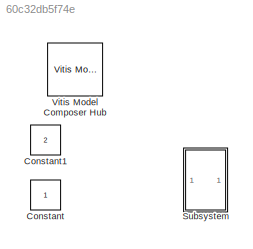
MODEL slx_60c32db5f74e
KIND model
CONFIG AbsTol = auto
CONFIG EnableMultiTasking = off
CONFIG FixedStep = auto
CONFIG MaxStep = auto
CONFIG MinStep = auto
CONFIG RelTol = 1e-3
CONFIG SampleTimeConstraint = Unconstrained
CONFIG SolverName = VariableStepAuto
CONFIG StartTime = 0.0
CONFIG StopTime = 10.0
BLOCK [Constant] Constant
  SampleTime = 1/fclk
BLOCK [Constant] Constant1
  SampleTime = 1/fclk
  Value = 2
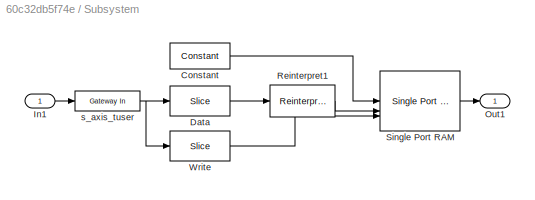
BLOCK [SubSystem] Subsystem
BLOCK [Reference] Subsystem/Constant  REF=hdlBasic/Constant
  SourceBlock = hdlBasic/Constant
  SourceType = Constant Block Block
BLOCK [Reference] Subsystem/Data  REF=hdlBasic/Slice
  SourceBlock = hdlBasic/Slice
  SourceType = Bit Slice Extractor Block
BLOCK [Inport] Subsystem/In1
BLOCK [Outport] Subsystem/Out1
BLOCK [Reference] Subsystem/Reinterpret1  REF=hdlBasic/Reinterpret
  SourceBlock = hdlBasic/Reinterpret
  SourceType = Type Reinterpreter Block
BLOCK [Reference] Subsystem/Single Port RAM  REF=hdlBasic/Single Port RAM
  SourceBlock = hdlBasic/Single Port RAM
  SourceType = Single Port Random Access Memory Block
BLOCK [Reference] Subsystem/Write  REF=hdlBasic/Slice
  SourceBlock = hdlBasic/Slice
  SourceType = Bit Slice Extractor Block
BLOCK [Reference] Subsystem/s_axis_tuser  REF=hdlBasic/Gateway In
  SourceBlock = hdlBasic/Gateway In
  SourceType = Gateway In Block
BLOCK [Reference] Vitis Model Composer Hub  REF=vmcUtilities/Vitis Model Composer Hub
  SourceBlock = vmcUtilities/Vitis Model Composer Hub
  SourceType = VMC Hub
  Tag = genX
  UserDataPersistent = on
LINE Subsystem/Constant:1 -> Subsystem/Single Port RAM:1
LINE Subsystem/Data:1 -> Subsystem/Reinterpret1:1
LINE Subsystem/In1:1 -> Subsystem/s_axis_tuser:1
LINE Subsystem/Reinterpret1:1 -> Subsystem/Single Port RAM:2
LINE Subsystem/Single Port RAM:1 -> Subsystem/Out1:1
LINE Subsystem/Write:1 -> Subsystem/Single Port RAM:3
NET Subsystem/s_axis_tuser:1 -> Subsystem/Data:1, Subsystem/Write:1
note: NET lines group one-source signal fan-out (src -> all destinations, sorted); 1:1 wires keep LINE
